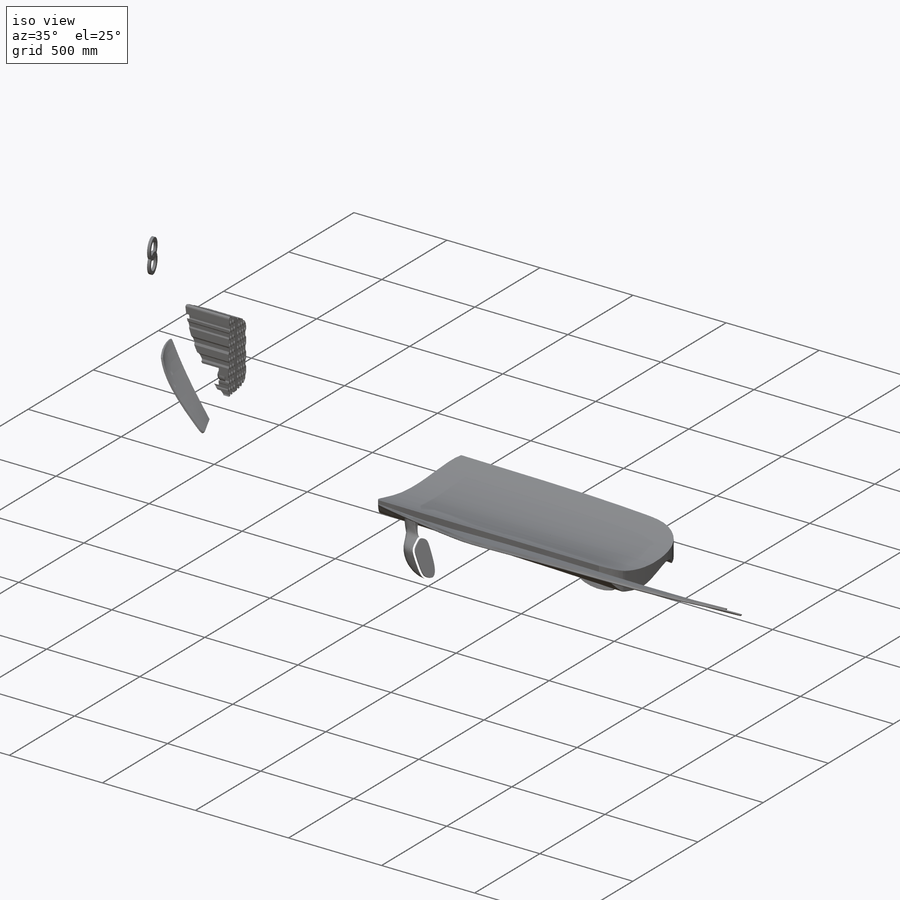
[diagram: iso view]
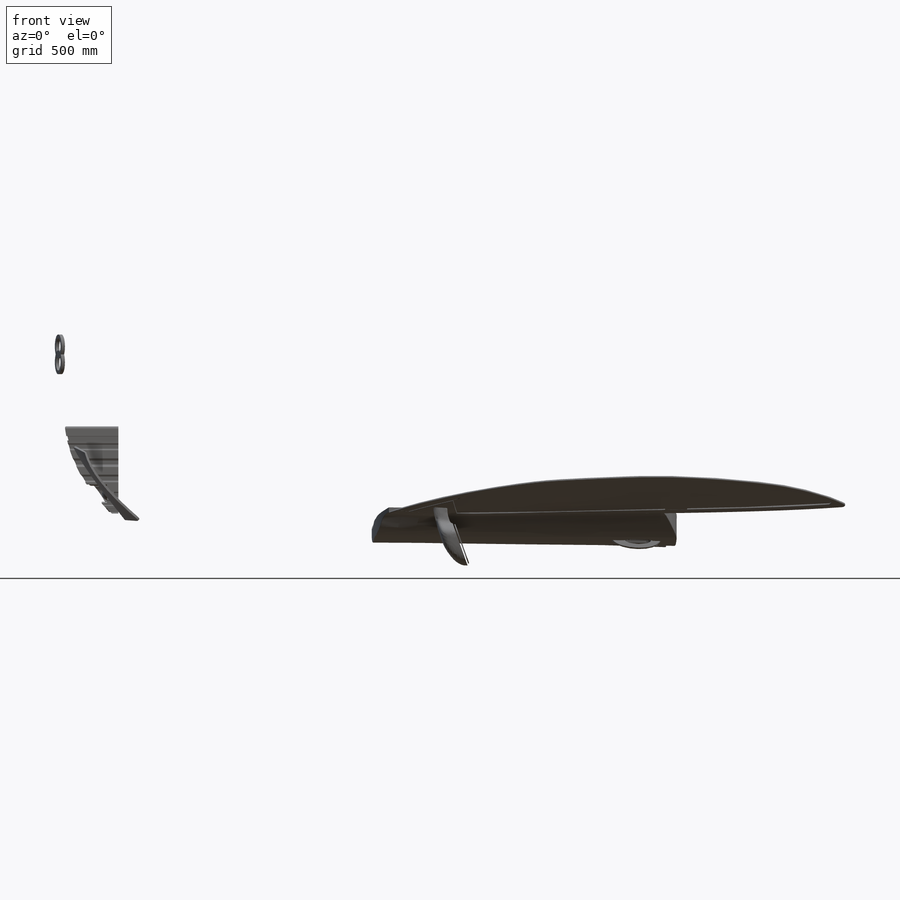
[diagram: front view]
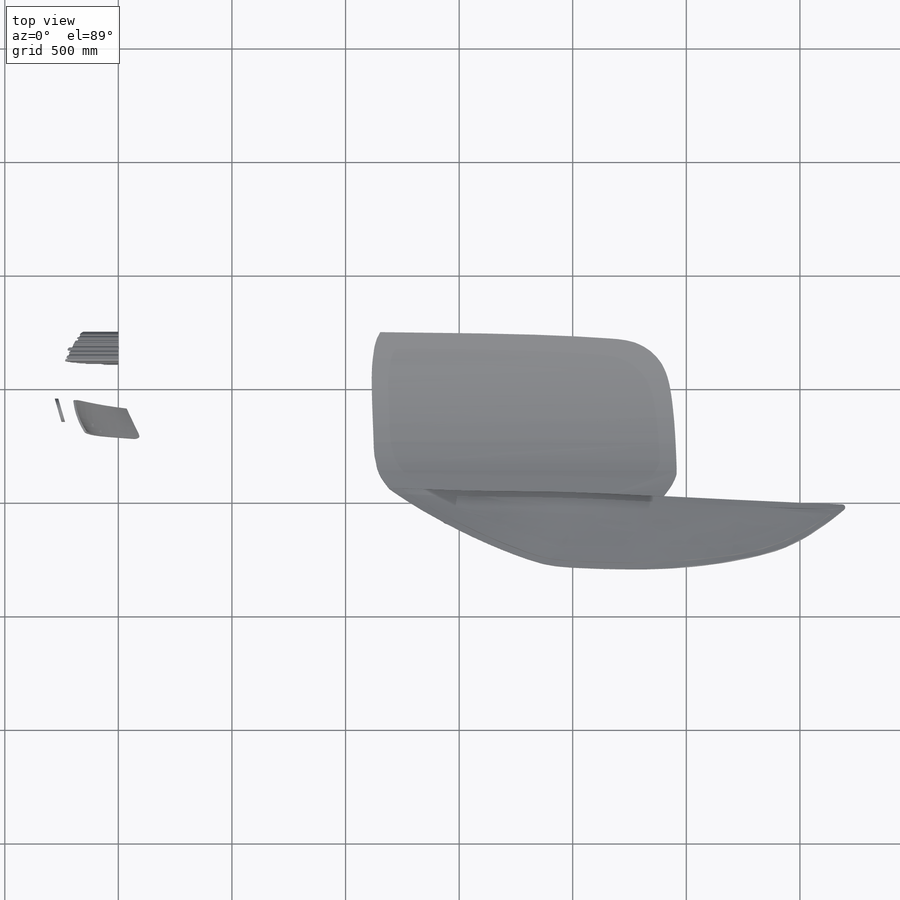
[diagram: top view]
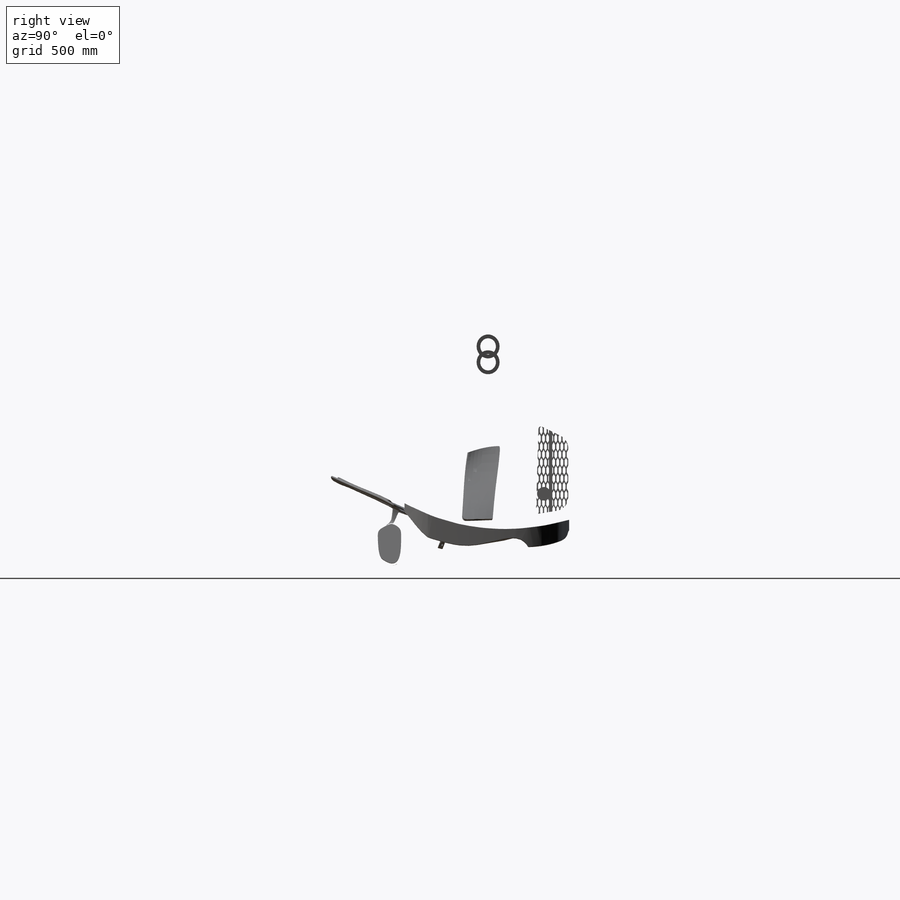
[diagram: right view]
SOLIDWORKS PART (.sldprt)
format: sldprt  version: not decoded by parser v0  size: 29,986,816 bytes
history: native  units: mm
features: surface_op x73, extrude x31, plane x29, sketch x29, material x25, cut_extrude x19, fillet x16, boolean_combine x8, mirror x7, delete_body x6, move_body x5, dome x2, chamfer x2, shell x2, revolve x2, pattern_linear x1 + 155 further entries (+132 scaffold rows collapsed; 33 parser-record rows omitted)
feature tree (577):
  scaffold x132  (default folders/planes/origin — collapsed)
  material  "Материал <не указан>"
  material  "前燈板"
  material  "前輪框"
  material  "中板"
  material  "前側板1"
  material  "前輪框接面"
  material  "後輪框"
  material  "側中片"
  material  "屁股"
  material  "車頂"
  material  "車窗"
  material  "後側片"
  material  "後輪框接面"
  material  "擋風玻璃"
  material  "後保險"
  material  "後保險下"
  material  "補後輪框"
  material  "補前輪框"
  material  "腰板"
  material  "前燈邊"
  material  "前燈面"
  material  "中底盤"
  material  "前底盤"
  material  "後底盤"
  plane  "前基準面"
  "上基準面"
  "右基準面"
  sketch  "草圖2"  dims[c1.D1=~1885.796197mm c2.D1=4625.0mm]
  "草圖3"
  "草圖8"
  "草圖15"
  sketch  "3D草圖1"
  parser-record x33  (decoder bookkeeping rows leaked as tree rows — omitted from the tree; the rows remain in map.json)
  "草圖46"
  "草圖18"
  "草圖102"
  surface_op  "曲面-伸長15"
  "草圖103"
  "草圖48"
  plane  "後輪框孔"
  "草圖49"
  "草圖20"
  "草圖21"
  "3D草圖56<4>"
  material  "雨刷溝"  gD1=0deg
  "草圖23"
  "3D草圖11<3>"
  "3D草圖31<3>"
  "草圖23<3>"
  "3D草圖11<4>"
  "3D草圖23<9>"
  "草圖24"
  plane  "曲面-修剪3"
  "3D草圖5<3>"
  "草圖27"
  surface_op  "曲面-疊層拉伸38"
  surface_op  "曲面-疊層拉伸39"
  "3D草圖59<3>"
  surface_op  "曲面-疊層拉伸40"
  surface_op  "曲面-疊層拉伸41"
  "3D草圖61<5>"
  surface_op  "曲面-疊層拉伸42"
  plane  "曲面-修剪20"
  surface_op  "曲面-疊層拉伸45"
  "草圖52"
  plane  "曲面-修剪21"
  surface_op  "曲面-疊層拉伸43"
  surface_op  "曲面-疊層拉伸44"
  "3D草圖63<6>"
  surface_op  "曲面-疊層拉伸46"
  "草圖53"
  surface_op  "曲面-疊層拉伸47"
  "草圖26"
  "3D草圖11<5>"
  "3D草圖5<4>"
  "草圖28"
  plane  "曲面-修剪22"
  "草圖32"
  "3D草圖30<8>"
  plane  "曲面-修剪7"
  "草圖34"
  "草圖161"
  sketch  "分割線28"
  "草圖162"
  surface_op  "曲面-疊層拉伸62"
  surface_op  "曲面-疊層拉伸2"
  "草圖35"
  plane  "曲面-修剪8"
  surface_op  "曲面-疊層拉伸3"
  surface_op  "曲面-疊層拉伸4"
  "平面1"
  "草圖36"
  surface_op  "曲面-疊層拉伸5"
  "草圖37"
  plane  "曲面-修剪9"
  surface_op  "曲面-疊層拉伸6"
  fillet  "圓角80"  Radius=6mm
  "草圖39"
  plane  "曲面-修剪10"
  "草圖96"
  sketch  "分割線18"
  "草圖97"
  sketch  "分割線19"
  "草圖98"
  surface_op  "曲面-疊層拉伸50"
  sketch  "刪除面2"
  surface_op  "曲面-疊層拉伸7"
  surface_op  "曲面-疊層拉伸8"
  surface_op  "曲面-疊層拉伸9"
  "草圖40"
  surface_op  "曲面-伸長6"
  plane  "曲面-修剪23"
  plane  "曲面-修剪24"
  "草圖41"
  surface_op  "曲面-伸長7"
  plane  "曲面-修剪25"
  surface_op  "曲面-偏移20"  曲面-平面6=0deg
  surface_op  "曲面-疊層拉伸19"
  "草圖42"
  surface_op  "曲面-伸長8"
  plane  "曲面-修剪26"  曲面-平面2=0deg
  "前輪底"
  "後輪底"
  "草圖54"
  "草圖55"
  surface_op  "曲面-伸長9"
  sketch  "分割線5"
  surface_op  "曲面-偏移5"
  surface_op  "曲面-偏移6"
  plane  "曲面-修剪27"
  "草圖56"
  surface_op  "曲面-伸長10"
  "草圖57"
  plane  "曲面-修剪28"  Offset=10mm
  surface_op  "曲面-偏移7"
  "草圖58"
  extrude  "填料-伸長1"  [1 undecoded]
  "草圖59"
  extrude  "填料-伸長2"  [1 undecoded]
  "草圖60"
  surface_op  "曲面-伸長11"
  "草圖61"
  surface_op  "曲面-伸長12"
  plane  "曲面-修剪29"
  "草圖63"
  surface_op  "曲面-伸長13"
  "草圖62"
  extrude  "填料-伸長5"  Depth=15mm
  "草圖65"
  extrude  "填料-伸長6"  Depth=15mm
  "草圖66"
  extrude  "填料-伸長7"  Depth=15mm
  surface_op  "曲面-偏移24"
  "草圖67"
  surface_op  "曲面-偏移8"
  surface_op  "曲面-伸長14"  曲面-平面3=0deg
  "草圖69"
  extrude  "填料-伸長8"  [1 undecoded]
  "草圖70"
  extrude  "填料-伸長9"  [1 undecoded]
  "草圖71"
  surface_op  "曲面-偏移9"
  extrude  "填料-伸長10"  [1 undecoded]
  plane  "曲面-修剪31"
  plane  "曲面-修剪32"
  "草圖72"
  cut_extrude  "除料-伸長1"  Depth=20mm
  "草圖73"
  cut_extrude  "除料-伸長2"  Depth=50mm
  sketch  "刪除面1"
  surface_op  "曲面-疊層拉伸48"
  "草圖75"
  extrude  "填料-伸長11"  Depth=30mm
  dome  "圓頂1"
  delete_body  "本體-刪除1"
  surface_op  "曲面-偏移13"
  "草圖81"
  extrude  "填料-伸長13"  Depth=3mm
  "草圖76"
  sketch  "分割線8"
  surface_op  "曲面-偏移10"
  "草圖77"
  plane  "曲面-修剪33"
  "草圖78"
  plane  "曲面-修剪34"
  surface_op  "曲面-偏移17"
  "草圖80"
  plane  "曲面-修剪35"
  "草圖104"
  sketch  "分割線23"
  sketch  "刪除面3"
  surface_op  "曲面-疊層拉伸51"
  fillet  "厚面2"  Radius=6mm
  fillet  "厚面3"  Radius=6mm
  fillet  "厚面4"  Radius=4mm
  fillet  "厚面10"  Radius=4mm
  "草圖82"
  "草圖83"
  sketch  "分割線11"
  surface_op  "曲面-偏移14"
  surface_op  "曲面-疊層拉伸49"
  "草圖85"
  extrude  "填料-伸長15"  [1 undecoded]
  "草圖86"
  cut_extrude  "除料-伸長6"  [1 undecoded]
  "草圖90"
  sketch  "前車窗"
  "草圖91"
  sketch  " 後車窗"
  "草圖105"
  extrude  "填料-伸長16"  Depth=75mm
  "草圖106"
  cut_extrude  "除料-伸長7"  [1 undecoded]
  boolean_combine  "結合1"
  "平面2"
  "草圖107"
  "草圖108"
  cut_extrude  "除料-伸長8"  Depth=16mm
  "草圖109"
  surface_op  "曲面-伸長17"
  "草圖110"
  "平面3"
  "草圖111"
  surface_op  "曲面-伸長18"
  surface_op  "曲面-疊層拉伸52"
  surface_op  "曲面-疊層拉伸53"
  "3D草圖76<3>"
  "草圖111<7>"
  surface_op  "曲面-疊層拉伸54"
  "3D草圖76<4>"
  "草圖110<2>"
  "草圖111<3>"
  surface_op  "曲面-疊層拉伸55"
  "3D草圖76<5>"
  "草圖111<4>"
  "草圖110<3>"  曲面-平面4=0deg
  "草圖111<6>"
  "草圖120"
  cut_extrude  "除料-伸長12"  Depth=10mm
  "草圖121"
  extrude  "填料-伸長17"  Depth=5mm
  "草圖122"
  sketch  "分割線26"
  "草圖123"
  cut_extrude  "除料-伸長13"  Depth=3mm
  chamfer  "導角1"  Distance=7mm
  surface_op  "曲面-偏移22"
  fillet  "厚面13"  Radius=2mm
  delete_body  "本體-刪除2"
  "草圖164"
  surface_op  "曲面-伸長23"
  plane  "曲面-修剪46"
  plane  "曲面-修剪47"
  surface_op  "曲面-偏移25"
  delete_body  "本體-刪除4"
  fillet  "厚面16"  Radius=5mm
  delete_body  "本體-刪除5"
  "草圖100"
  sketch  "分割線20"
  "草圖99"
  sketch  "分割線21"
  surface_op  "曲面-偏移23"
  sketch  "分割線22"
  "草圖99<2>"
  surface_op  "曲面-偏移19"
  fillet  "前蓋實體"  Radius=5mm
  "草圖113"
  cut_extrude  "除料-伸長9"  [1 undecoded]
  "草圖163"
  cut_extrude  "除料-伸長22"  [1 undecoded]
  cut_extrude  "除料-伸長23"  [1 undecoded]
  "草圖163<2>"
  "草圖114"
  sketch  "分割線24"
  "草圖115"
  sketch  "分割線25"
  surface_op  "曲面-伸長24"
  "草圖114<3>"
  surface_op  "曲面-伸長25"
  "草圖115<2>"
  chamfer  "分割2"  [1 undecoded]
  delete_body  "本體-刪除6"
  surface_op  "曲面-偏移21"
  fillet  "厚面12"  Radius=10mm
  move_body  "本體-移動/複製1"
  boolean_combine  "結合2"
  "草圖118"
  cut_extrude  "除料-伸長10"  Depth=15mm
  "草圖119"
  cut_extrude  "除料-伸長11"  Depth=136mm
  "草圖124"
  cut_extrude  "除料-伸長14"  [1 undecoded]
  "草圖125"
  extrude  "填料-伸長18"  Depth=20mm
  "草圖126"
  cut_extrude  "除料-伸長15"  Depth=81mm
  "草圖128"
  extrude  "填料-伸長19"  Depth=63mm
  dome  "圓頂2"
  "草圖129"
  extrude  "填料-伸長20"  Depth=233mm
  "草圖130"
  cut_extrude  "除料-伸長16"  [1 undecoded]
  "草圖131"
  extrude  "填料-伸長21"  Depth=127mm
  "草圖132"
  extrude  "後車牌"  Depth=400mm
  "草圖133"
  extrude  "前車牌"  Depth=400mm
  sketch  "刪除引擎蓋"
  sketch  "刪除面19"
  "草圖134"
  sketch  "刪除面9"
  shell  "薄殼1"  Thickness=3mm
  shell  "薄殼2"  Thickness=3mm
  surface_op  "曲面-伸長20"
  plane  "曲面-修剪37"
  move_body  "本體-移動/複製2"
  "草圖136"
  surface_op  "曲面-伸長21"
  plane  "曲面-修剪43"
  move_body  "本體-移動/複製3"
  sketch  "刪除面10"
  plane  "曲面-修剪45"
  "草圖83<2>"
  "草圖138"
  sketch  "分割線27"
  sketch  "刪除面17"
  surface_op  "曲面-疊層拉伸56"
  boolean_combine  "結合4"
  mirror  "鏡射2"
  "平面4"
  mirror  "鏡射3"
  mirror  "鏡射5"
  boolean_combine  "結合5"
  mirror  "鏡射6"
  move_body  "本體-移動/複製5"
  boolean_combine  "結合7"
  mirror  "鏡射8"
  delete_body  "本體-刪除7"
  surface_op  "曲面-疊層拉伸57"
  surface_op  "曲面-疊層拉伸58"
  "3D草圖79<4>"
  surface_op  "曲面-疊層拉伸59"
  "3D草圖79<5>"
  surface_op  "曲面-疊層拉伸60"
  "3D草圖79<6>"
  fillet  "厚面14"  Radius=12mm
  surface_op  "曲面-伸長22"
  fillet  "厚面15"  Radius=12mm
  "草圖140"
  extrude  "填料-伸長23"  Depth=251mm
  "草圖142"
  cut_extrude  "除料-伸長17"  Depth=251mm
  "草圖143"
  cut_extrude  "除料-伸長18"  Depth=3mm
  "草圖165"
  extrude  "填料-伸長38"  Depth=30mm
  "草圖145"
  extrude  "填料-伸長24"  Depth=100mm
  "草圖146"
  extrude  "填料-伸長25"  Depth=10mm
  "平面5"
  "草圖147"
  revolve  "旋轉1"  [1 undecoded]
  "草圖148"
  extrude  "填料-伸長27"  Depth=600mm
  "草圖149"
  extrude  "填料-伸長29"  Depth=50mm
  "草圖150"
  cut_extrude  "除料-伸長19"  [1 undecoded]
  "平面6"
  "草圖151"
  extrude  "填料-伸長30"  Depth=50mm
  "草圖153"
  extrude  "填料-伸長31"  Depth=20mm
  mirror  "鏡射4"
  "草圖155"
  revolve  "旋轉2"  [1 undecoded]
  move_body  "本體-移動/複製4"
  pattern_linear  "直線複製排列2"  Count1=4 Count2=1 Spacing1=50mm Spacing2=1mm
  "草圖156"
  "草圖157"
  cut_extrude  "除料-伸長20"  Depth=4mm
  extrude  "填料-伸長34"  Depth=5mm
  "草圖158"
  extrude  "填料-伸長35"  Depth=10mm
  "草圖159"
  extrude  "填料-伸長36"  Depth=4mm
  "草圖160"
  extrude  "填料-伸長37"  Depth=4mm
  boolean_combine  "結合8"
  boolean_combine  "結合9"
  boolean_combine  "結合10"
  surface_op  "曲面-偏移26"
  surface_op  "曲面-偏移27"
  surface_op  "曲面-偏移28"
  surface_op  "曲面-偏移29"
  surface_op  "曲面-偏移30"
  sketch  "刪除面22"
  sketch  "刪除面23"
  "草圖167"
  plane  "曲面-修剪48"
  plane  "曲面-修剪49"
  "草圖167<2>"
  fillet  "厚面17"  Radius=6mm
  fillet  "厚面18"  Radius=6mm
  fillet  "厚面19"  Radius=6mm
  fillet  "厚面20"  Radius=6mm
  fillet  "厚面21"  Radius=6mm
  surface_op  "曲面-偏移31"
  sketch  "刪除面24"
  mirror  "鏡射9"
decode coverage: 59 of 203 modeling features carry decoded parameters; 155 rows unclassified (native names shown)
note: ~ marks probable driven/reference dimensions
note: 17 parameter values undecoded
summary: no parameter record found for 17 features
note: suppression state not decoded; provenance and decode notes live in map.json
